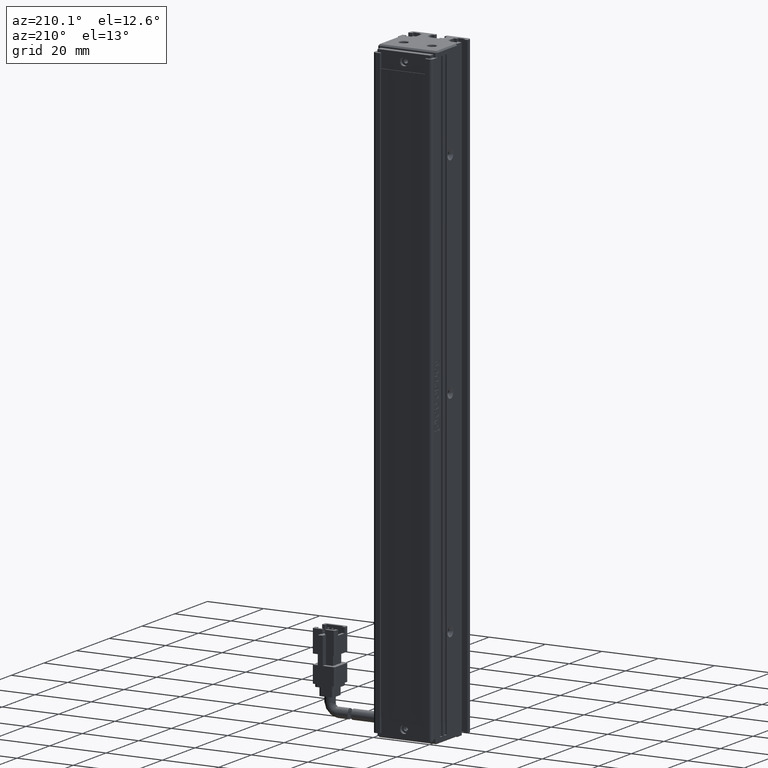
[diagram: clean part render]
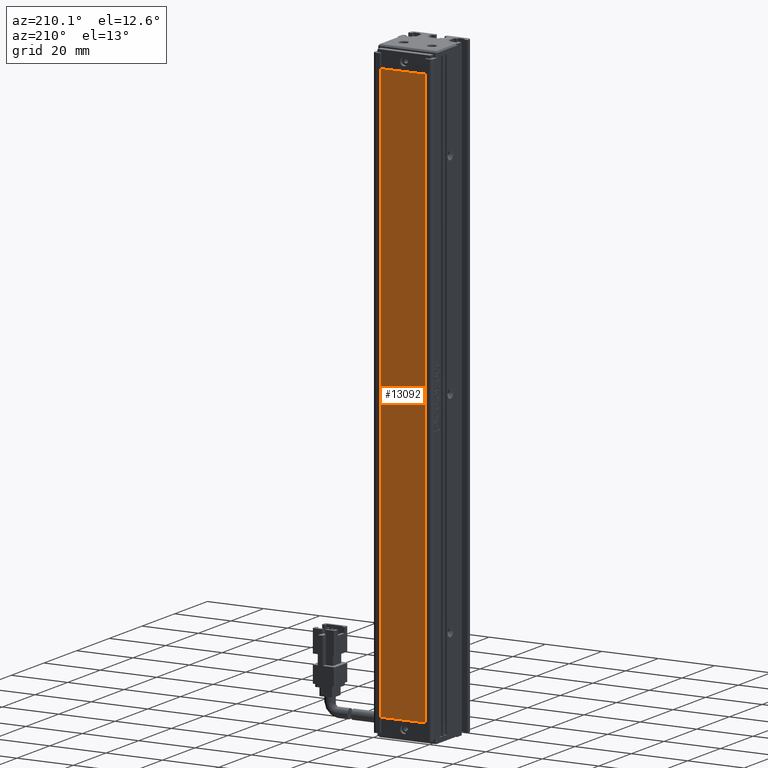
[diagram: same view with one face highlighted and labeled with its STEP entity id]
A machine part, auxiliary view. The second image highlights one B-rep face of the part: STEP entity #13092.
In plain terms, the highlighted planar face has unit normal (0, 1, -0).
Its self-contained STEP definition (entity closure, byte-faithful):
#3138 = CARTESIAN_POINT ( 'NONE',  ( 32.92537974683545300, 34.29073232304836700, -13.00000000000001100 ) ) ;
#3669 = LINE ( 'NONE', #46086, #44451 ) ;
#3776 = VERTEX_POINT ( 'NONE', #20020 ) ;
#5072 = ORIENTED_EDGE ( 'NONE', *, *, #17162, .T. ) ;
#7097 = CARTESIAN_POINT ( 'NONE',  ( 0.0000000000000000000, 34.29073232304836700, -217.0000000000000000 ) ) ;
#7546 = EDGE_LOOP ( 'NONE', ( #50942, #21917, #12175, #5072 ) ) ;
#12175 = ORIENTED_EDGE ( 'NONE', *, *, #17479, .T. ) ;
#13092 = ADVANCED_FACE ( 'NONE', ( #37806 ), #31639, .T. ) ;
#13792 = CARTESIAN_POINT ( 'NONE',  ( 48.92537974683541800, 34.29073232304836700, -13.00000000000001100 ) ) ;
#16031 = VECTOR ( 'NONE', #53360, 1000.000000000000000 ) ;
#17162 = EDGE_CURVE ( 'NONE', #46553, #21233, #3669, .T. ) ;
#17479 = EDGE_CURVE ( 'NONE', #3776, #46553, #27183, .T. ) ;
#18326 = CARTESIAN_POINT ( 'NONE',  ( 48.92537974683541800, 34.29073232304836700, 0.0000000000000000000 ) ) ;
#19369 = VECTOR ( 'NONE', #35444, 1000.000000000000000 ) ;
#20020 = CARTESIAN_POINT ( 'NONE',  ( 48.92537974683541800, 34.29073232304836700, -217.0000000000000000 ) ) ;
#21233 = VERTEX_POINT ( 'NONE', #3138 ) ;
#21917 = ORIENTED_EDGE ( 'NONE', *, *, #44289, .T. ) ;
#24404 = LINE ( 'NONE', #47535, #32354 ) ;
#27183 = LINE ( 'NONE', #7097, #16031 ) ;
#27194 = DIRECTION ( 'NONE',  ( 0.0000000000000000000, 0.0000000000000000000, 1.000000000000000000 ) ) ;
#30423 = DIRECTION ( 'NONE',  ( 1.000000000000000000, -0.0000000000000000000, 0.0000000000000000000 ) ) ;
#31639 = PLANE ( 'NONE',  #33072 ) ;
#32354 = VECTOR ( 'NONE', #30423, 1000.000000000000000 ) ;
#33072 = AXIS2_PLACEMENT_3D ( 'NONE', #53674, #36787, #27194 ) ;
#35444 = DIRECTION ( 'NONE',  ( 0.0000000000000000000, 0.0000000000000000000, -1.000000000000000000 ) ) ;
#36787 = DIRECTION ( 'NONE',  ( 0.0000000000000000000, 1.000000000000000000, -0.0000000000000000000 ) ) ;
#37806 = FACE_OUTER_BOUND ( 'NONE', #7546, .T. ) ;
#41944 = CARTESIAN_POINT ( 'NONE',  ( 32.92537974683542500, 34.29073232304836700, -217.0000000000000000 ) ) ;
#44289 = EDGE_CURVE ( 'NONE', #47746, #3776, #51649, .T. ) ;
#44451 = VECTOR ( 'NONE', #50322, 1000.000000000000000 ) ;
#46086 = CARTESIAN_POINT ( 'NONE',  ( 32.92537974683545300, 34.29073232304836700, -4.479719937434256100E-015 ) ) ;
#46553 = VERTEX_POINT ( 'NONE', #41944 ) ;
#47535 = CARTESIAN_POINT ( 'NONE',  ( 0.0000000000000000000, 34.29073232304836700, -13.00000000000001100 ) ) ;
#47746 = VERTEX_POINT ( 'NONE', #13792 ) ;
#50322 = DIRECTION ( 'NONE',  ( 1.360567432138672300E-016, 0.0000000000000000000, 1.000000000000000000 ) ) ;
#50771 = EDGE_CURVE ( 'NONE', #21233, #47746, #24404, .T. ) ;
#50942 = ORIENTED_EDGE ( 'NONE', *, *, #50771, .T. ) ;
#51649 = LINE ( 'NONE', #18326, #19369 ) ;
#53360 = DIRECTION ( 'NONE',  ( -1.000000000000000000, 0.0000000000000000000, 0.0000000000000000000 ) ) ;
#53674 = CARTESIAN_POINT ( 'NONE',  ( 0.0000000000000000000, 34.29073232304836700, 0.0000000000000000000 ) ) ;